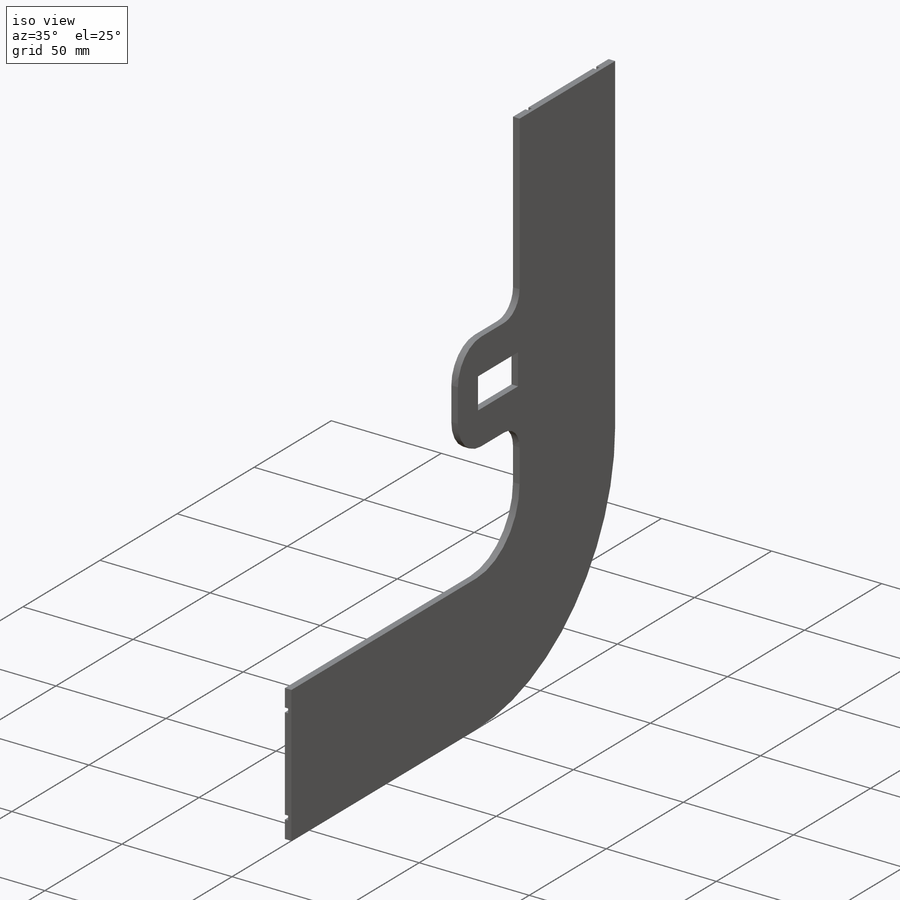
[diagram: iso view]
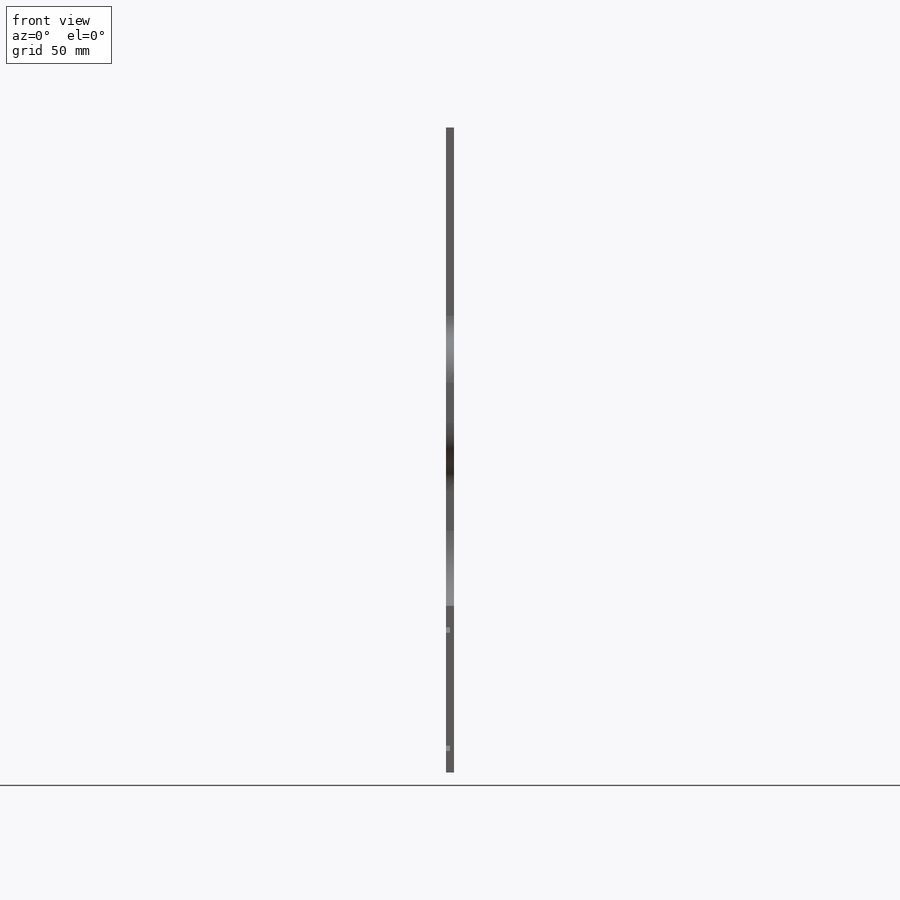
[diagram: front view]
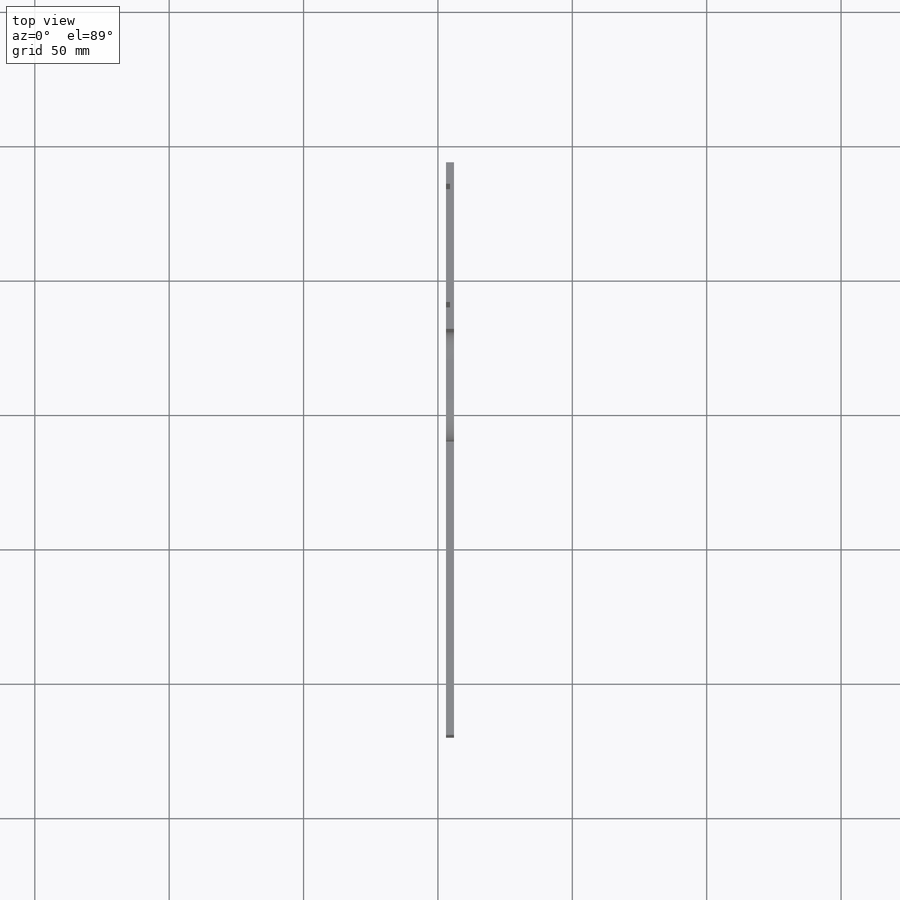
[diagram: top view]
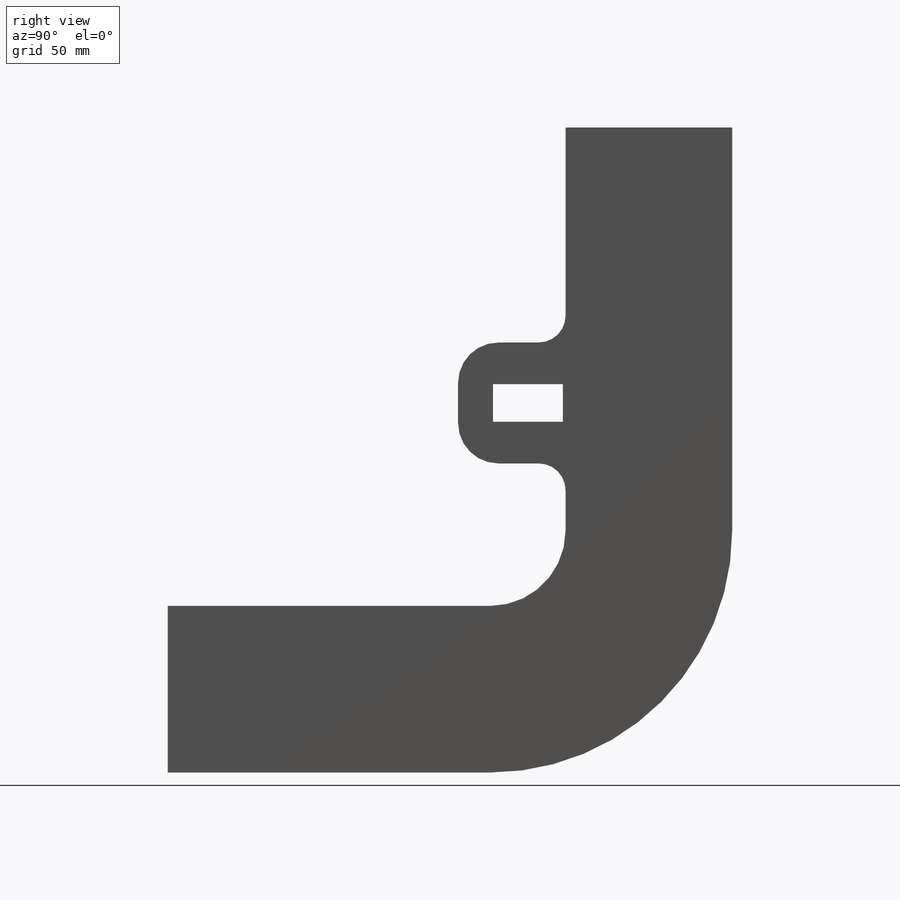
[diagram: right view]
SOLIDWORKS PART (.sldprt)
format: sldprt  version: not decoded by parser v0  size: 293,376 bytes
history: native  units: mm
features: sketch x7, extrude x3, cut_extrude x2, fillet x2, material x1, mirror x1, delete_body x1 (+13 scaffold rows collapsed)
feature tree (30):
  scaffold x13  (default folders/planes/origin — collapsed)
  material  "Material <not specified>"
  sketch  "Sketch1"  dims[D1=180.0mm D2=62.0mm D3=120.0mm D4=150.0mm]
  extrude  "Boss-Extrude1"  Depth=3mm
  sketch  "Sketch2"  dims[c1.D1=~38.272412mm c1.D2=80.0mm c2.D1=42.0mm c2.D3=2.0mm c2.D4=2.0mm]
  cut_extrude  "Cut-Extrude1"  Depth=1.5mm
  mirror  "Mirror1"
  delete_body  "Body-Delete1"
  sketch  "Sketch5"  dims[D1=40.0mm D2=45.0mm D3=25.0mm]
  extrude  "Boss-Extrude2"  Depth=3mm
  sketch  "Sketch6"  dims[D1=1.0mm D2=26.0mm D3=14.0mm]
  cut_extrude  "Cut-Extrude2"  Depth=3mm
  sketch  "Sketch7"  dims[D1=15.5mm D2=15.5mm]
  fillet  "Fillet1"  Radius=15mm
  sketch  "Sketch8"  dims[D1=30.0mm D2=10.0mm D3=15.0mm]
  sketch  "Sketch9"  dims[D1=5.4mm]
  extrude  "Boss-Extrude3"  Depth=3mm
  fillet  "Fillet2"  Radius=10mm
decode coverage: 14 of 16 modeling features carry decoded parameters
note: ~ marks probable driven/reference dimensions
note: suppression state not decoded; provenance and decode notes live in map.json
